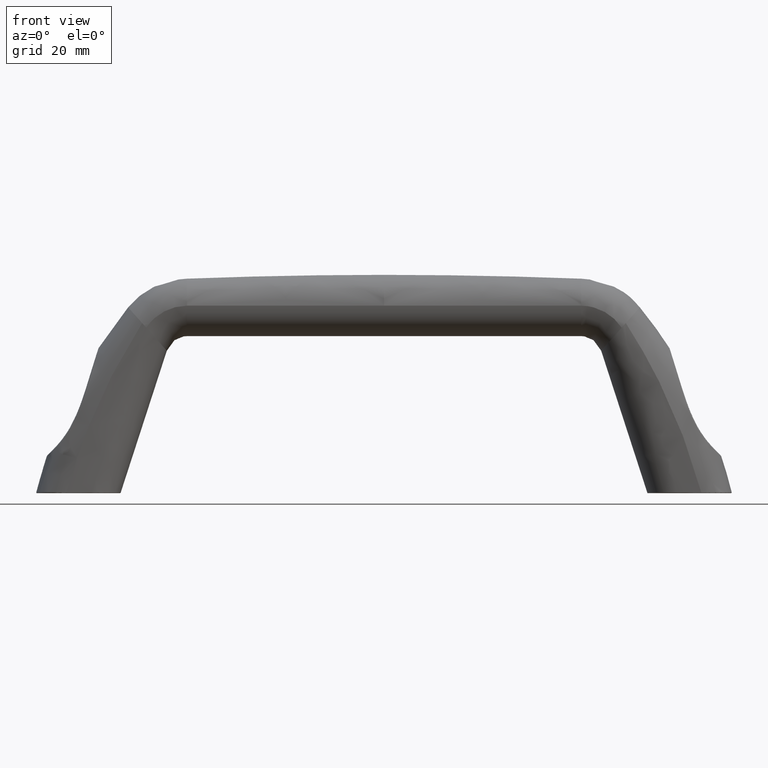
[diagram: clean part render]
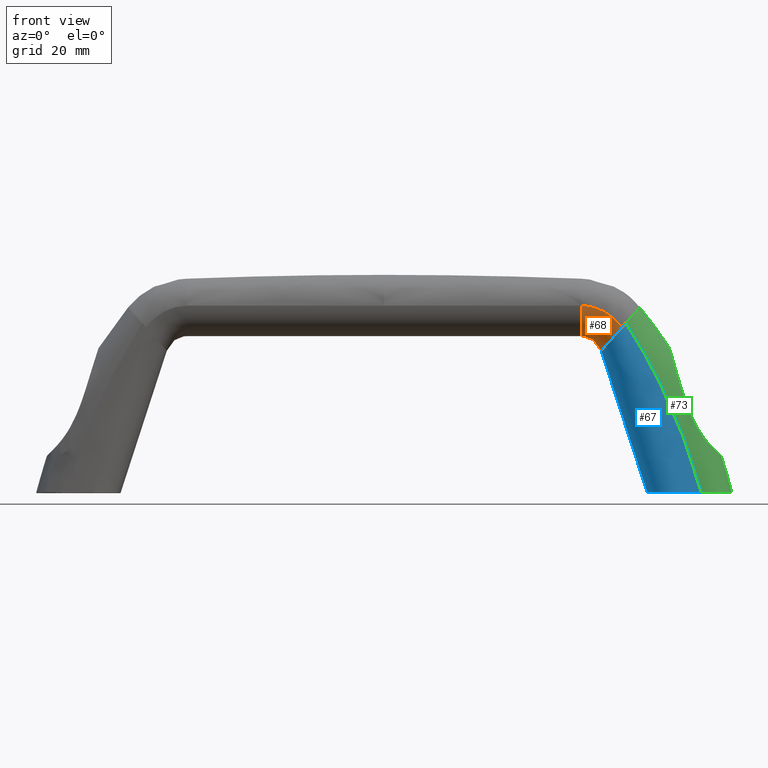
[diagram: same view with three faces highlighted in distinct colors, each labeled with its STEP entity id]
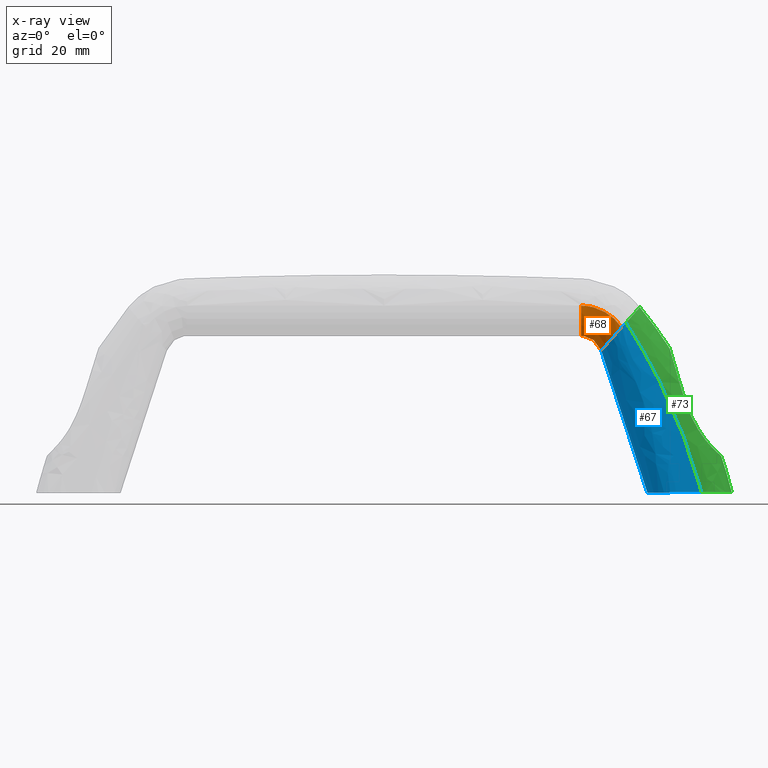
[diagram: x-ray of the same camera — body ghosted, the three highlighted faces saturated]
A machine part, front view with three faces highlighted in distinct colors.
The next image is the same camera in x-ray (body ghosted, the three faces saturated) — at least one of them is partly hidden behind the body in this view.
Their STEP definitions:

[orange] entity #68 — the highlighted face is a freeform B-spline surface patch.
#68=ADVANCED_FACE('',(#377),#376,.T.);
#376=( BOUNDED_SURFACE() B_SPLINE_SURFACE( 2,3,((#2759,#2760,#2761,#2762,#2763,#2764,#2765,#2766,#2767,#2768,#2769,#2770,#2771,#2772),(#2773,#2774,#2775,#2776,#2777,#2778,#2779,#2780,#2781,#2782,#2783,#2784,#2785,#2786),(#2787,#2788,#2789,#2790,#2791,#2792,#2793,#2794,#2795,#2796,#2797,#2798,#2799,#2800),(#2801,#2802,#2803,#2804,#2805,#2806,#2807,#2808,#2809,#2810,#2811,#2812,#2813,#2814),(#2815,#2816,#2817,#2818,#2819,#2820,#2821,#2822,#2823,#2824,#2825,#2826,#2827,#2828)), .UNSPECIFIED.,.F.,.F.,.F.) B_SPLINE_SURFACE_WITH_KNOTS((3,2,3),(4,2,2,2,2,2,4),(0.00000000000E+00,1.26555991594E+01,2.53111983189E+01),(0.00000000000E+00,7.67197238666E-01,1.53439447733E+00,3.06878895467E+00,6.13757790933E+00,9.20636686400E+00,1.22751558187E+01), .UNSPECIFIED. ) GEOMETRIC_REPRESENTATION_ITEM() RATIONAL_B_SPLINE_SURFACE(((1.00000000000E+00,1.00000000000E+00,1.00000000000E+00,1.00000000000E+00,1.00000000000E+00,1.00000000000E+00,1.00000000000E+00,1.00000000000E+00,1.00000000000E+00,1.00000000000E+00,1.00000000000E+00,1.00000000000E+00,1.00000000000E+00,1.00000000000E+00),(7.07106781187E-01,7.07106781187E-01,7.07106781187E-01,7.07106781187E-01,7.07106781187E-01,7.07106781187E-01,7.07106781187E-01,7.07106781187E-01,7.07106781187E-01,7.07106781187E-01,7.07106781187E-01,7.07106781187E-01,7.07106781187E-01,7.07106781187E-01),(1.00000000000E+00,1.00000000000E+00,1.00000000000E+00,1.00000000000E+00,1.00000000000E+00,1.00000000000E+00,1.00000000000E+00,1.00000000000E+00,1.00000000000E+00,1.00000000000E+00,1.00000000000E+00,1.00000000000E+00,1.00000000000E+00,1.00000000000E+00),(7.07106781187E-01,7.07106781187E-01,7.07106781187E-01,7.07106781187E-01,7.07106781187E-01,7.07106781187E-01,7.07106781187E-01,7.07106781187E-01,7.07106781187E-01,7.07106781187E-01,7.07106781187E-01,7.07106781187E-01,7.07106781187E-01,7.07106781187E-01),(1.00000000000E+00,1.00000000000E+00,1.00000000000E+00,1.00000000000E+00,1.00000000000E+00,1.00000000000E+00,1.00000000000E+00,1.00000000000E+00,1.00000000000E+00,1.00000000000E+00,1.00000000000E+00,1.00000000000E+00,1.00000000000E+00,1.00000000000E+00))) REPRESENTATION_ITEM('') SURFACE() );
#377=FACE_OUTER_BOUND('',#2829,.T.);
#2759=CARTESIAN_POINT('',(-2.85206787322E+01,2.05500000150E+01,7.04499999848E+01));
#2760=CARTESIAN_POINT('',(-2.82584653874E+01,2.05581993387E+01,7.04418038533E+01));
#2761=CARTESIAN_POINT('',(-2.79959610585E+01,2.05577015712E+01,7.04339961398E+01));
#2762=CARTESIAN_POINT('',(-2.74724404576E+01,2.05614835576E+01,7.03970385650E+01));
#2763=CARTESIAN_POINT('',(-2.72111338473E+01,2.05626141438E+01,7.03710224920E+01));
#2764=CARTESIAN_POINT('',(-2.64306436085E+01,2.05657469883E+01,7.02685756085E+01));
#2765=CARTESIAN_POINT('',(-2.59145727336E+01,2.05666553113E+01,7.01684305899E+01));
#2766=CARTESIAN_POINT('',(-2.43909018848E+01,2.05660856390E+01,6.97750318919E+01));
#2767=CARTESIAN_POINT('',(-2.34083223710E+01,2.05611963603E+01,6.93879393799E+01));
#2768=CARTESIAN_POINT('',(-2.15685934252E+01,2.05425092102E+01,6.83892517022E+01));
#2769=CARTESIAN_POINT('',(-2.07116871275E+01,2.05287103796E+01,6.77777137465E+01));
#2770=CARTESIAN_POINT('',(-1.91745256747E+01,2.04924521020E+01,6.63691377231E+01));
#2771=CARTESIAN_POINT('',(-1.84942912993E+01,2.04700015543E+01,6.55723223142E+01));
#2772=CARTESIAN_POINT('',(-1.79222159583E+01,2.04433877271E+01,6.47079671291E+01));
#2773=CARTESIAN_POINT('',(-2.85206787322E+01,2.05500000150E+01,6.24999999848E+01));
#2774=CARTESIAN_POINT('',(-2.83767145385E+01,2.05581993387E+01,6.25000013173E+01));
#2775=CARTESIAN_POINT('',(-2.82327116996E+01,2.05577015712E+01,6.24943431764E+01));
#2776=CARTESIAN_POINT('',(-2.79456441137E+01,2.05614835576E+01,6.24717531609E+01));
#2777=CARTESIAN_POINT('',(-2.78025370236E+01,2.05626141438E+01,6.24548117542E+01));
#2778=CARTESIAN_POINT('',(-2.73759211762E+01,2.05657469883E+01,6.23872686121E+01));
#2779=CARTESIAN_POINT('',(-2.70950600381E+01,2.05666553113E+01,6.23198031601E+01));
#2780=CARTESIAN_POINT('',(-2.62733621763E+01,2.05660856390E+01,6.20530256702E+01));
#2781=CARTESIAN_POINT('',(-2.57539420679E+01,2.05611963603E+01,6.17883090564E+01));
#2782=CARTESIAN_POINT('',(-2.48219877641E+01,2.05425092102E+01,6.11112809238E+01));
#2783=CARTESIAN_POINT('',(-2.44097315282E+01,2.05287103796E+01,6.06990664655E+01));
#2784=CARTESIAN_POINT('',(-2.37326364736E+01,2.04924521020E+01,5.97671766253E+01));
#2785=CARTESIAN_POINT('',(-2.34678287873E+01,2.04700015543E+01,5.92477939106E+01));
#2786=CARTESIAN_POINT('',(-2.32899913541E+01,2.04433877271E+01,5.86999733827E+01));
#2787=CARTESIAN_POINT('',(-2.85206787322E+01,2.85000000150E+01,6.24999999848E+01));
#2788=CARTESIAN_POINT('',(-2.83767145385E+01,2.85000000150E+01,6.25000013173E+01));
#2789=CARTESIAN_POINT('',(-2.82327116996E+01,2.85000000150E+01,6.24943431764E+01));
#2790=CARTESIAN_POINT('',(-2.79456441137E+01,2.85000000150E+01,6.24717531609E+01));
#2791=CARTESIAN_POINT('',(-2.78025370236E+01,2.85000000150E+01,6.24548117542E+01));
#2792=CARTESIAN_POINT('',(-2.73759211762E+01,2.85000000150E+01,6.23872686121E+01));
#2793=CARTESIAN_POINT('',(-2.70950600381E+01,2.85000000150E+01,6.23198031601E+01));
#2794=CARTESIAN_POINT('',(-2.62733621763E+01,2.85000000150E+01,6.20530256702E+01));
#2795=CARTESIAN_POINT('',(-2.57539420679E+01,2.85000000150E+01,6.17883090564E+01));
#2796=CARTESIAN_POINT('',(-2.48219877641E+01,2.85000000150E+01,6.11112809238E+01));
#2797=CARTESIAN_POINT('',(-2.44097315282E+01,2.85000000150E+01,6.06990664655E+01));
#2798=CARTESIAN_POINT('',(-2.37326364736E+01,2.85000000150E+01,5.97671766253E+01));
#2799=CARTESIAN_POINT('',(-2.34678287873E+01,2.85000000150E+01,5.92477939106E+01));
#2800=CARTESIAN_POINT('',(-2.32899913541E+01,2.85000000150E+01,5.86999733827E+01));
#2801=CARTESIAN_POINT('',(-2.85206787322E+01,3.64500000150E+01,6.24999999848E+01));
#2802=CARTESIAN_POINT('',(-2.83767145385E+01,3.64418006913E+01,6.25000013173E+01));
#2803=CARTESIAN_POINT('',(-2.82327116996E+01,3.64422984588E+01,6.24943431764E+01));
#2804=CARTESIAN_POINT('',(-2.79456441137E+01,3.64385164724E+01,6.24717531609E+01));
#2805=CARTESIAN_POINT('',(-2.78025370236E+01,3.64373858862E+01,6.24548117542E+01));
#2806=CARTESIAN_POINT('',(-2.73759211762E+01,3.64342530417E+01,6.23872686121E+01));
#2807=CARTESIAN_POINT('',(-2.70950600381E+01,3.64333447187E+01,6.23198031601E+01));
#2808=CARTESIAN_POINT('',(-2.62733621763E+01,3.64339143910E+01,6.20530256702E+01));
#2809=CARTESIAN_POINT('',(-2.57539420679E+01,3.64388036697E+01,6.17883090564E+01));
#2810=CARTESIAN_POINT('',(-2.48219877641E+01,3.64574908197E+01,6.11112809238E+01));
#2811=CARTESIAN_POINT('',(-2.44097315282E+01,3.64712896504E+01,6.06990664655E+01));
#2812=CARTESIAN_POINT('',(-2.37326364736E+01,3.65075479280E+01,5.97671766253E+01));
#2813=CARTESIAN_POINT('',(-2.34678287873E+01,3.65299984757E+01,5.92477939106E+01));
#2814=CARTESIAN_POINT('',(-2.32899913541E+01,3.65566123028E+01,5.86999733827E+01));
#2815=CARTESIAN_POINT('',(-2.85206787322E+01,3.64500000150E+01,7.04499999848E+01));
#2816=CARTESIAN_POINT('',(-2.82584653874E+01,3.64418006913E+01,7.04418038533E+01));
#2817=CARTESIAN_POINT('',(-2.79959610585E+01,3.64422984588E+01,7.04339961398E+01));
#2818=CARTESIAN_POINT('',(-2.74724404576E+01,3.64385164724E+01,7.03970385650E+01));
#2819=CARTESIAN_POINT('',(-2.72111338473E+01,3.64373858862E+01,7.03710224920E+01));
#2820=CARTESIAN_POINT('',(-2.64306436085E+01,3.64342530417E+01,7.02685756085E+01));
#2821=CARTESIAN_POINT('',(-2.59145727336E+01,3.64333447187E+01,7.01684305899E+01));
#2822=CARTESIAN_POINT('',(-2.43909018848E+01,3.64339143910E+01,6.97750318919E+01));
#2823=CARTESIAN_POINT('',(-2.34083223710E+01,3.64388036697E+01,6.93879393799E+01));
#2824=CARTESIAN_POINT('',(-2.15685934252E+01,3.64574908197E+01,6.83892517022E+01));
#2825=CARTESIAN_POINT('',(-2.07116871275E+01,3.64712896504E+01,6.77777137465E+01));
#2826=CARTESIAN_POINT('',(-1.91745256747E+01,3.65075479280E+01,6.63691377231E+01));
#2827=CARTESIAN_POINT('',(-1.84942912993E+01,3.65299984757E+01,6.55723223142E+01));
#2828=CARTESIAN_POINT('',(-1.79222159583E+01,3.65566123028E+01,6.47079671291E+01));
#2829=EDGE_LOOP('',(#4204,#4205,#4206,#4207,#4208,#4209));
#4204=ORIENTED_EDGE('',*,*,#4359,.T.);
#4205=ORIENTED_EDGE('',*,*,#4363,.T.);
#4206=ORIENTED_EDGE('',*,*,#4395,.T.);
#4207=ORIENTED_EDGE('',*,*,#4396,.T.);
#4208=ORIENTED_EDGE('',*,*,#4394,.F.);
#4209=ORIENTED_EDGE('',*,*,#4397,.T.);
#4359=EDGE_CURVE('',#4720,#4713,#4721,.T.);
#4363=EDGE_CURVE('',#4713,#4740,#4747,.T.);
#4394=EDGE_CURVE('',#4944,#4923,#4951,.T.);
#4395=EDGE_CURVE('',#4740,#4957,#4958,.T.);
#4396=EDGE_CURVE('',#4957,#4923,#4964,.T.);
#4397=EDGE_CURVE('',#4944,#4720,#4970,.T.);
#4713=VERTEX_POINT('',#5895);
#4720=VERTEX_POINT('',#5899);
#4721=CIRCLE('',#5903,7.95000000014E+00);
#4740=VERTEX_POINT('',#5911);
#4747=CIRCLE('',#5918,7.95000000009E+00);
#4923=VERTEX_POINT('',#6342);
#4944=VERTEX_POINT('',#6388);
#4951=CIRCLE('',#6396,8.05661228784E+00);
#4957=VERTEX_POINT('',#6397);
#4958=(BOUNDED_CURVE() B_SPLINE_CURVE(3,(#6398,#6399,#6400,#6401,#6402,#6403,#6404,#6405,#6406,#6407,#6408,#6409,#6410,#6411,#6412,#6413,#6414,#6415,#6416),.UNSPECIFIED.,.F.,.F.) B_SPLINE_CURVE_WITH_KNOTS((4,3,3,3,3,3,4),(0.00000000000E+00,7.68950382026E-01,1.53781060209E+00,3.07573168831E+00,6.15333678594E+00,9.22144672174E+00,1.22751558187E+01),.UNSPECIFIED.) CURVE() GEOMETRIC_REPRESENTATION_ITEM() RATIONAL_B_SPLINE_CURVE((1.00000000000E+00,1.00000000000E+00,1.00000000000E+00,1.00000000000E+00,1.00000000000E+00,1.00000000000E+00,1.00000000000E+00,1.00000000000E+00,1.00000000000E+00,1.00000000000E+00,1.00000000000E+00,1.00000000000E+00,1.00000000000E+00,1.00000000000E+00,1.00000000000E+00,1.00000000000E+00,1.00000000000E+00,1.00000000000E+00,1.00000000000E+00)) REPRESENTATION_ITEM('') );
#4964=CIRCLE('',#6420,8.05661228784E+00);
#4970=(BOUNDED_CURVE() B_SPLINE_CURVE(3,(#6421,#6422,#6423,#6424,#6425,#6426,#6427,#6428,#6429,#6430,#6431,#6432,#6433,#6434,#6435,#6436,#6437,#6438,#6439),.UNSPECIFIED.,.F.,.F.) B_SPLINE_CURVE_WITH_KNOTS((4,3,3,3,3,3,4),(-1.22751558187E+01,-9.22144672174E+00,-6.15333678594E+00,-3.07573168831E+00,-1.53781060209E+00,-7.68950382026E-01,0.00000000000E+00),.UNSPECIFIED.) CURVE() GEOMETRIC_REPRESENTATION_ITEM() RATIONAL_B_SPLINE_CURVE((1.00000000000E+00,1.00000000000E+00,1.00000000000E+00,1.00000000000E+00,1.00000000000E+00,1.00000000000E+00,1.00000000000E+00,1.00000000000E+00,1.00000000000E+00,1.00000000000E+00,1.00000000000E+00,1.00000000000E+00,1.00000000000E+00,1.00000000000E+00,1.00000000000E+00,1.00000000000E+00,1.00000000000E+00,1.00000000000E+00,1.00000000000E+00)) REPRESENTATION_ITEM('') );
#5895=CARTESIAN_POINT('',(-2.85206787322E+01,2.85000000150E+01,6.24999999847E+01));
#5899=CARTESIAN_POINT('',(-2.85206787322E+01,2.05500000150E+01,7.04499999848E+01));
#5900=CARTESIAN_POINT('',(-2.85206787322E+01,2.85000000151E+01,7.04499999848E+01));
#5901=DIRECTION('',(1.00000000000E+00,-3.12817556618E-15,-3.23660737606E-15));
#5902=DIRECTION('',(3.12817556619E-15,1.00000000000E+00,4.29006934791E-13));
#5903=AXIS2_PLACEMENT_3D('',#5900,#5901,#5902);
#5911=CARTESIAN_POINT('',(-2.85206787322E+01,3.64500000150E+01,7.04499999848E+01));
#5915=CARTESIAN_POINT('',(-2.85206787322E+01,2.85000000149E+01,7.04499999848E+01));
#5916=DIRECTION('',(1.00000000000E+00,-7.55208387756E-15,7.59699780355E-15));
#5917=DIRECTION('',(-7.59699780364E-15,-1.15974874706E-11,1.00000000000E+00));
#5918=AXIS2_PLACEMENT_3D('',#5915,#5916,#5917);
#6342=CARTESIAN_POINT('',(-2.32899913541E+01,2.85000000150E+01,5.86999733827E+01));
#6388=CARTESIAN_POINT('',(-1.79222159583E+01,2.04433877271E+01,6.47079671291E+01));
#6393=CARTESIAN_POINT('',(-1.79222159584E+01,2.85000000150E+01,6.47079671292E+01));
#6394=DIRECTION('',(7.45722089115E-01,1.39560121619E-11,-6.66257131899E-01));
#6395=DIRECTION('',(-1.04112705142E-11,1.00000000000E+00,9.29385588127E-12));
#6396=AXIS2_PLACEMENT_3D('',#6393,#6394,#6395);
#6397=CARTESIAN_POINT('',(-1.79222159583E+01,3.65566123028E+01,6.47079671291E+01));
#6398=CARTESIAN_POINT('',(-2.85206787322E+01,3.64500000150E+01,7.04499999848E+01));
#6399=CARTESIAN_POINT('',(-2.82584653874E+01,3.64418006913E+01,7.04418038533E+01));
#6400=CARTESIAN_POINT('',(-2.79959610585E+01,3.64422984588E+01,7.04339961398E+01));
#6401=CARTESIAN_POINT('',(-2.77342007580E+01,3.64404074656E+01,7.04155173524E+01));
#6402=CARTESIAN_POINT('',(-2.74724404576E+01,3.64385164724E+01,7.03970385650E+01));
#6403=CARTESIAN_POINT('',(-2.72111338473E+01,3.64373858862E+01,7.03710224920E+01));
#6404=CARTESIAN_POINT('',(-2.69509704344E+01,3.64363416047E+01,7.03368735308E+01));
#6405=CARTESIAN_POINT('',(-2.64306436085E+01,3.64342530417E+01,7.02685756085E+01));
#6406=CARTESIAN_POINT('',(-2.59145727336E+01,3.64333447187E+01,7.01684305899E+01));
#6407=CARTESIAN_POINT('',(-2.54066824506E+01,3.64335346095E+01,7.00372976906E+01));
#6408=CARTESIAN_POINT('',(-2.43909018848E+01,3.64339143910E+01,6.97750318919E+01));
#6409=CARTESIAN_POINT('',(-2.34083223710E+01,3.64388036697E+01,6.93879393799E+01));
#6410=CARTESIAN_POINT('',(-2.24884578981E+01,3.64481472447E+01,6.88885955411E+01));
#6411=CARTESIAN_POINT('',(-2.15685934252E+01,3.64574908197E+01,6.83892517022E+01));
#6412=CARTESIAN_POINT('',(-2.07116871275E+01,3.64712896504E+01,6.77777137465E+01));
#6413=CARTESIAN_POINT('',(-1.99431064011E+01,3.64894187892E+01,6.70734257348E+01));
#6414=CARTESIAN_POINT('',(-1.91745256747E+01,3.65075479280E+01,6.63691377231E+01));
#6415=CARTESIAN_POINT('',(-1.84942912993E+01,3.65299984757E+01,6.55723223142E+01));
#6416=CARTESIAN_POINT('',(-1.79222159583E+01,3.65566123028E+01,6.47079671291E+01));
#6417=CARTESIAN_POINT('',(-1.79222159584E+01,2.85000000150E+01,6.47079671292E+01));
#6418=DIRECTION('',(-7.45722089115E-01,1.39614191261E-11,6.66257131899E-01));
#6419=DIRECTION('',(-1.04090656708E-11,-1.00000000000E+00,9.30443912956E-12));
#6420=AXIS2_PLACEMENT_3D('',#6417,#6418,#6419);
#6421=CARTESIAN_POINT('',(-1.79222159583E+01,2.04433877271E+01,6.47079671291E+01));
#6422=CARTESIAN_POINT('',(-1.84942912993E+01,2.04700015543E+01,6.55723223142E+01));
#6423=CARTESIAN_POINT('',(-1.91745256747E+01,2.04924521020E+01,6.63691377231E+01));
#6424=CARTESIAN_POINT('',(-1.99431064011E+01,2.05105812408E+01,6.70734257348E+01));
#6425=CARTESIAN_POINT('',(-2.07116871275E+01,2.05287103796E+01,6.77777137465E+01));
#6426=CARTESIAN_POINT('',(-2.15685934252E+01,2.05425092102E+01,6.83892517022E+01));
#6427=CARTESIAN_POINT('',(-2.24884578981E+01,2.05518527853E+01,6.88885955411E+01));
#6428=CARTESIAN_POINT('',(-2.34083223710E+01,2.05611963603E+01,6.93879393799E+01));
#6429=CARTESIAN_POINT('',(-2.43909018848E+01,2.05660856390E+01,6.97750318919E+01));
#6430=CARTESIAN_POINT('',(-2.54066824506E+01,2.05664654205E+01,7.00372976906E+01));
#6431=CARTESIAN_POINT('',(-2.59145727336E+01,2.05666553113E+01,7.01684305899E+01));
#6432=CARTESIAN_POINT('',(-2.64306436085E+01,2.05657469883E+01,7.02685756085E+01));
#6433=CARTESIAN_POINT('',(-2.69509704344E+01,2.05636584253E+01,7.03368735308E+01));
#6434=CARTESIAN_POINT('',(-2.72111338473E+01,2.05626141438E+01,7.03710224920E+01));
#6435=CARTESIAN_POINT('',(-2.74724404576E+01,2.05614835576E+01,7.03970385650E+01));
#6436=CARTESIAN_POINT('',(-2.77342007580E+01,2.05595925644E+01,7.04155173524E+01));
#6437=CARTESIAN_POINT('',(-2.79959610585E+01,2.05577015712E+01,7.04339961398E+01));
#6438=CARTESIAN_POINT('',(-2.82584653874E+01,2.05581993387E+01,7.04418038533E+01));
#6439=CARTESIAN_POINT('',(-2.85206787322E+01,2.05500000150E+01,7.04499999848E+01));

[blue] entity #67 — the highlighted face is a freeform B-spline surface patch.
#67=ADVANCED_FACE('',(#367),#366,.T.);
#366=( BOUNDED_SURFACE() B_SPLINE_SURFACE( 2,3,((#2708,#2709,#2710,#2711,#2712,#2713,#2714,#2715,#2716,#2717),(#2718,#2719,#2720,#2721,#2722,#2723,#2724,#2725,#2726,#2727),(#2728,#2729,#2730,#2731,#2732,#2733,#2734,#2735,#2736,#2737),(#2738,#2739,#2740,#2741,#2742,#2743,#2744,#2745,#2746,#2747),(#2748,#2749,#2750,#2751,#2752,#2753,#2754,#2755,#2756,#2757)), .UNSPECIFIED.,.F.,.F.,.F.) B_SPLINE_SURFACE_WITH_KNOTS((3,2,3),(4,2,2,2,4),(3.47271992166E+01,3.63699601762E+01,4.90255593356E+01),(-1.44328993201E-14,1.17126444058E+01,2.34252888115E+01,3.51379332173E+01,4.68505776231E+01), .UNSPECIFIED. ) GEOMETRIC_REPRESENTATION_ITEM() RATIONAL_B_SPLINE_SURFACE(((1.00000000000E+00,1.00000000000E+00,1.00000000000E+00,1.00000000000E+00,1.00000000000E+00,1.00000000000E+00,1.00000000000E+00,1.00000000000E+00,1.00000000000E+00,1.00000000000E+00),(9.86890175793E-01,9.86890175793E-01,9.87709539806E-01,9.90167631845E-01,9.91806359870E-01,9.95083815922E-01,9.96722543948E-01,9.99180635987E-01,1.00000000000E+00,1.00000000000E+00),(1.00000000000E+00,1.00000000000E+00,1.00000000000E+00,1.00000000000E+00,1.00000000000E+00,1.00000000000E+00,1.00000000000E+00,1.00000000000E+00,1.00000000000E+00,1.00000000000E+00),(7.07106781187E-01,7.07106781187E-01,7.07106781187E-01,7.07106781187E-01,7.07106781187E-01,7.07106781187E-01,7.07106781187E-01,7.07106781187E-01,7.07106781187E-01,7.07106781187E-01),(1.00000000000E+00,1.00000000000E+00,1.00000000000E+00,1.00000000000E+00,1.00000000000E+00,1.00000000000E+00,1.00000000000E+00,1.00000000000E+00,1.00000000000E+00,1.00000000000E+00))) REPRESENTATION_ITEM('') SURFACE() );
#367=FACE_OUTER_BOUND('',#2758,.T.);
#2708=CARTESIAN_POINT('',(-1.68467878146E+01,2.07073586351E+01,6.59116623447E+01));
#2709=CARTESIAN_POINT('',(-1.46654925782E+01,2.07073586351E+01,6.25298085047E+01));
#2710=CARTESIAN_POINT('',(-1.26047943234E+01,2.06975237214E+01,5.90509917418E+01));
#2711=CARTESIAN_POINT('',(-8.74389165421E+00,2.06680189801E+01,5.19238773608E+01));
#2712=CARTESIAN_POINT('',(-6.94358544698E+00,2.06483491526E+01,4.82751480269E+01));
#2713=CARTESIAN_POINT('',(-3.62443640943E+00,2.06090094975E+01,4.08347918637E+01));
#2714=CARTESIAN_POINT('',(-2.10559984680E+00,2.05893396700E+01,3.70428377879E+01));
#2715=CARTESIAN_POINT('',(6.30410565546E-01,2.05598349288E+01,2.93466784223E+01));
#2716=CARTESIAN_POINT('',(1.84748475562E+00,2.05500000150E+01,2.54425119447E+01));
#2717=CARTESIAN_POINT('',(2.90542052310E+00,2.05500000150E+01,2.14999999850E+01));
#2718=CARTESIAN_POINT('',(-1.73701210390E+01,2.04433877271E+01,6.53259107982E+01));
#2719=CARTESIAN_POINT('',(-1.52825497598E+01,2.04433877271E+01,6.19673061865E+01));
#2720=CARTESIAN_POINT('',(-1.33740284117E+01,2.04501339088E+01,5.84603993675E+01));
#2721=CARTESIAN_POINT('',(-9.95292660388E+00,2.04703054642E+01,5.12700237748E+01));
#2722=CARTESIAN_POINT('',(-8.44038581323E+00,2.04836976198E+01,4.75945984716E+01));
#2723=CARTESIAN_POINT('',(-5.72755414775E+00,2.05103496040E+01,4.01877819169E+01));
#2724=CARTESIAN_POINT('',(-4.52273047366E+00,2.05236098676E+01,3.64580292106E+01));
#2725=CARTESIAN_POINT('',(-2.27152182565E+00,2.05434187088E+01,2.89959656932E+01));
#2726=CARTESIAN_POINT('',(-1.21980777474E+00,2.05500000150E+01,2.52579581122E+01));
#2727=CARTESIAN_POINT('',(-1.72289738418E-01,2.05500000150E+01,2.14999999850E+01));
#2728=CARTESIAN_POINT('',(-1.79222159583E+01,2.04433877271E+01,6.47079671291E+01));
#2729=CARTESIAN_POINT('',(-1.59331625505E+01,2.04433877271E+01,6.13731842310E+01));
#2730=CARTESIAN_POINT('',(-1.41736074125E+01,2.04500509951E+01,5.78350418513E+01));
#2731=CARTESIAN_POINT('',(-1.11860106982E+01,2.04700407991E+01,5.05921628121E+01));
#2732=CARTESIAN_POINT('',(-9.95441560421E+00,2.04833673351E+01,4.68920730364E+01));
#2733=CARTESIAN_POINT('',(-7.83648116805E+00,2.05100204071E+01,3.95254143793E+01));
#2734=CARTESIAN_POINT('',(-6.94259666984E+00,2.05233469430E+01,3.58623401949E+01));
#2735=CARTESIAN_POINT('',(-5.17132487878E+00,2.05433367470E+01,2.86357902746E+01));
#2736=CARTESIAN_POINT('',(-4.28695479229E+00,2.05500000150E+01,2.50725591624E+01));
#2737=CARTESIAN_POINT('',(-3.24999999993E+00,2.05500000150E+01,2.14999999850E+01));
#2738=CARTESIAN_POINT('',(-2.32899913541E+01,2.04433877271E+01,5.86999733827E+01));
#2739=CARTESIAN_POINT('',(-2.22824920745E+01,2.04433877271E+01,5.55999755995E+01));
#2740=CARTESIAN_POINT('',(-2.12749927950E+01,2.04500509951E+01,5.24999778164E+01));
#2741=CARTESIAN_POINT('',(-1.92599942359E+01,2.04700407991E+01,4.62999822501E+01));
#2742=CARTESIAN_POINT('',(-1.82524949564E+01,2.04833673351E+01,4.31999844670E+01));
#2743=CARTESIAN_POINT('',(-1.62374963974E+01,2.05100204071E+01,3.69999889007E+01));
#2744=CARTESIAN_POINT('',(-1.52299971179E+01,2.05233469430E+01,3.38999911175E+01));
#2745=CARTESIAN_POINT('',(-1.32149985590E+01,2.05433367470E+01,2.76999955512E+01));
#2746=CARTESIAN_POINT('',(-1.22074992795E+01,2.05500000150E+01,2.45999977681E+01));
#2747=CARTESIAN_POINT('',(-1.11999999999E+01,2.05500000150E+01,2.14999999850E+01));
#2748=CARTESIAN_POINT('',(-2.32899913541E+01,2.85000000150E+01,5.86999733827E+01));
#2749=CARTESIAN_POINT('',(-2.22824920745E+01,2.85000000150E+01,5.55999755995E+01));
#2750=CARTESIAN_POINT('',(-2.12749927950E+01,2.85000000150E+01,5.24999778164E+01));
#2751=CARTESIAN_POINT('',(-1.92599942359E+01,2.85000000150E+01,4.62999822501E+01));
#2752=CARTESIAN_POINT('',(-1.82524949564E+01,2.85000000150E+01,4.31999844670E+01));
#2753=CARTESIAN_POINT('',(-1.62374963974E+01,2.85000000150E+01,3.69999889007E+01));
#2754=CARTESIAN_POINT('',(-1.52299971179E+01,2.85000000150E+01,3.38999911175E+01));
#2755=CARTESIAN_POINT('',(-1.32149985590E+01,2.85000000150E+01,2.76999955512E+01));
#2756=CARTESIAN_POINT('',(-1.22074992795E+01,2.85000000150E+01,2.45999977681E+01));
#2757=CARTESIAN_POINT('',(-1.11999999999E+01,2.85000000150E+01,2.14999999850E+01));
#2758=EDGE_LOOP('',(#4199,#4200,#4201,#4202,#4203));
#4199=ORIENTED_EDGE('',*,*,#4390,.T.);
#4200=ORIENTED_EDGE('',*,*,#4391,.T.);
#4201=ORIENTED_EDGE('',*,*,#4392,.T.);
#4202=ORIENTED_EDGE('',*,*,#4393,.T.);
#4203=ORIENTED_EDGE('',*,*,#4394,.T.);
#4390=EDGE_CURVE('',#4923,#4924,#4925,.T.);
#4391=EDGE_CURVE('',#4924,#4436,#4931,.T.);
#4392=EDGE_CURVE('',#4436,#4937,#4938,.T.);
#4393=EDGE_CURVE('',#4937,#4944,#4945,.T.);
#4394=EDGE_CURVE('',#4944,#4923,#4951,.T.);
#4436=VERTEX_POINT('',#5223);
#4923=VERTEX_POINT('',#6342);
#4924=VERTEX_POINT('',#6343);
#4925=LINE('',#6344,#6345);
#4931=(BOUNDED_CURVE() B_SPLINE_CURVE(3,(#6347,#6348,#6349,#6350,#6351,#6352,#6353,#6354,#6355,#6356,#6357,#6358,#6359,#6360,#6361,#6362,#6363,#6364,#6365,#6366,#6367,#6368,#6369,#6370,#6371,#6372,#6373),.UNSPECIFIED.,.F.,.F.) B_SPLINE_CURVE_WITH_KNOTS((4,2,2,2,2,2,2,2,2,2,2,2,1,4),(-1.86545012662E+01,-1.74885949370E+01,-1.63226886079E+01,-1.51567822787E+01,-1.39908759496E+01,-1.28249696205E+01,-1.16590632913E+01,-9.32725063306E+00,-8.16134430391E+00,-6.99543797473E+00,-6.41248481025E+00,-5.82953164566E+00,-4.66362531649E+00,0.00000000000E+00),.UNSPECIFIED.) CURVE() GEOMETRIC_REPRESENTATION_ITEM() RATIONAL_B_SPLINE_CURVE((1.00000000000E+00,1.00000000000E+00,1.00000000000E+00,1.00000000000E+00,1.00000000000E+00,1.00000000000E+00,1.00000000000E+00,1.00000000000E+00,1.00000000000E+00,1.00000000000E+00,1.00000000000E+00,1.00000000000E+00,1.00000000000E+00,1.00000000000E+00,1.00000000000E+00,1.00000000000E+00,1.00000000000E+00,1.00000000000E+00,1.00000000000E+00,1.00000000000E+00,1.00000000000E+00,1.00000000000E+00,1.00000000000E+00,1.00000000000E+00,1.00000000000E+00,1.00000000000E+00,1.00000000000E+00)) REPRESENTATION_ITEM('') );
#4937=VERTEX_POINT('',#6374);
#4938=(BOUNDED_CURVE() B_SPLINE_CURVE(3,(#6375,#6376,#6377,#6378,#6379,#6380,#6381,#6382,#6383,#6384,#6385,#6386,#6387),.UNSPECIFIED.,.F.,.F.) B_SPLINE_CURVE_WITH_KNOTS((4,3,3,3,4),(0.00000000000E+00,1.20482180650E+01,2.42907375283E+01,3.64859717455E+01,4.86065040064E+01),.UNSPECIFIED.) CURVE() GEOMETRIC_REPRESENTATION_ITEM() RATIONAL_B_SPLINE_CURVE((1.00000000000E+00,1.00000000000E+00,1.00000000000E+00,1.00000000000E+00,1.00000000000E+00,1.00000000000E+00,1.00000000000E+00,1.00000000000E+00,1.00000000000E+00,1.00000000000E+00,1.00000000000E+00,1.00000000000E+00,1.00000000000E+00)) REPRESENTATION_ITEM('') );
#4944=VERTEX_POINT('',#6388);
#4945=CIRCLE('',#6392,5.06705175301E+00);
#4951=CIRCLE('',#6396,8.05661228784E+00);
#5223=CARTESIAN_POINT('',(2.85160230910E+00,2.05500084320E+01,2.17000175471E+01));
#6342=CARTESIAN_POINT('',(-2.32899913541E+01,2.85000000150E+01,5.86999733827E+01));
#6343=CARTESIAN_POINT('',(-1.12449094052E+01,2.85000000150E+01,2.16381827705E+01));
#6344=CARTESIAN_POINT('',(-2.32899913541E+01,2.85000000150E+01,5.86999733827E+01));
#6345=VECTOR('',#6346,3.89699925909E+01);
#6346=DIRECTION('',(3.09086072336E-01,0.00000000000E+00,-9.51034068731E-01));
#6347=CARTESIAN_POINT('',(-1.12449094052E+01,2.85000000150E+01,2.16381827705E+01));
#6348=CARTESIAN_POINT('',(-1.12449092685E+01,2.81105008585E+01,2.16381823560E+01));
#6349=CARTESIAN_POINT('',(-1.12162293728E+01,2.77201560111E+01,2.16384107844E+01));
#6350=CARTESIAN_POINT('',(-1.11020727254E+01,2.69485511597E+01,2.16393191909E+01));
#6351=CARTESIAN_POINT('',(-1.10161947421E+01,2.65659869456E+01,2.16400028322E+01));
#6352=CARTESIAN_POINT('',(-1.07924582954E+01,2.58257760932E+01,2.16417862189E+01));
#6353=CARTESIAN_POINT('',(-1.06543135925E+01,2.54655747785E+01,2.16428882931E+01));
#6354=CARTESIAN_POINT('',(-1.03253058795E+01,2.47650426995E+01,2.16455160640E+01));
#6355=CARTESIAN_POINT('',(-1.01325033962E+01,2.44221491544E+01,2.16470573565E+01));
#6356=CARTESIAN_POINT('',(-9.70324894187E+00,2.37752799654E+01,2.16504902542E+01));
#6357=CARTESIAN_POINT('',(-9.46681092014E+00,2.34701161887E+01,2.16523817819E+01));
#6358=CARTESIAN_POINT('',(-8.95100934364E+00,2.28957471504E+01,2.16565038624E+01));
#6359=CARTESIAN_POINT('',(-8.67052361949E+00,2.26256123308E+01,2.16587434297E+01));
#6360=CARTESIAN_POINT('',(-7.76877031316E+00,2.18777528040E+01,2.16659204226E+01));
#6361=CARTESIAN_POINT('',(-7.10927322032E+00,2.14773776104E+01,2.16711430647E+01));
#6362=CARTESIAN_POINT('',(-6.03320644574E+00,2.10229800480E+01,2.16795141684E+01));
#6363=CARTESIAN_POINT('',(-5.65957222020E+00,2.08967970802E+01,2.16823963946E+01));
#6364=CARTESIAN_POINT('',(-4.90476792285E+00,2.07027080273E+01,2.16881503378E+01));
#6365=CARTESIAN_POINT('',(-4.52403252649E+00,2.06343128913E+01,2.16910192158E+01));
#6366=CARTESIAN_POINT('',(-3.94806583752E+00,2.05735222557E+01,2.16952973572E+01));
#6367=CARTESIAN_POINT('',(-3.75526300302E+00,2.05602544241E+01,2.16967192432E+01));
#6368=CARTESIAN_POINT('',(-3.36801264269E+00,2.05478546216E+01,2.16995529333E+01));
#6369=CARTESIAN_POINT('',(-3.17341125952E+00,2.05499931037E+01,2.16999865533E+01));
#6370=CARTESIAN_POINT('',(-2.59034543670E+00,2.05499934232E+01,2.16999872356E+01));
#6371=CARTESIAN_POINT('',(-6.46792703521E-01,2.05499954634E+01,2.16999914508E+01));
#6372=CARTESIAN_POINT('',(1.29676023571E+00,2.05500017376E+01,2.17000040955E+01));
#6373=CARTESIAN_POINT('',(2.85160230910E+00,2.05500084320E+01,2.17000175471E+01));
#6374=CARTESIAN_POINT('',(-1.68467878146E+01,2.07073586351E+01,6.59116623447E+01));
#6375=CARTESIAN_POINT('',(2.85160230910E+00,2.05500084320E+01,2.17000175471E+01));
#6376=CARTESIAN_POINT('',(1.80627047027E+00,2.05503341166E+01,2.55745657893E+01));
#6377=CARTESIAN_POINT('',(6.07272169909E-01,2.05600844499E+01,2.94117647171E+01));
#6378=CARTESIAN_POINT('',(-7.37594640629E-01,2.05745872994E+01,3.31947581051E+01));
#6379=CARTESIAN_POINT('',(-2.10559984680E+00,2.05893396700E+01,3.70428377879E+01));
#6380=CARTESIAN_POINT('',(-3.62443640943E+00,2.06090094975E+01,4.08347918637E+01));
#6381=CARTESIAN_POINT('',(-5.28401092820E+00,2.06286793251E+01,4.45549699453E+01));
#6382=CARTESIAN_POINT('',(-6.94358544698E+00,2.06483491526E+01,4.82751480269E+01));
#6383=CARTESIAN_POINT('',(-8.74389165421E+00,2.06680189801E+01,5.19238773608E+01));
#6384=CARTESIAN_POINT('',(-1.06743429888E+01,2.06827713507E+01,5.54874345513E+01));
#6385=CARTESIAN_POINT('',(-1.26047943234E+01,2.06975237214E+01,5.90509917418E+01));
#6386=CARTESIAN_POINT('',(-1.46654925782E+01,2.07073586351E+01,6.25298085047E+01));
#6387=CARTESIAN_POINT('',(-1.68467878146E+01,2.07073586351E+01,6.59116623447E+01));
#6388=CARTESIAN_POINT('',(-1.79222159583E+01,2.04433877271E+01,6.47079671291E+01));
#6389=CARTESIAN_POINT('',(-1.79222159565E+01,2.55104394802E+01,6.47079671277E+01));
#6390=DIRECTION('',(7.45722089168E-01,-4.39522751527E-10,-6.66257131839E-01));
#6391=DIRECTION('',(-2.12239423312E-01,9.47904438151E-01,-2.37553369426E-01));
#6392=AXIS2_PLACEMENT_3D('',#6389,#6390,#6391);
#6393=CARTESIAN_POINT('',(-1.79222159584E+01,2.85000000150E+01,6.47079671292E+01));
#6394=DIRECTION('',(7.45722089115E-01,1.39560121619E-11,-6.66257131899E-01));
#6395=DIRECTION('',(-1.04112705142E-11,1.00000000000E+00,9.29385588127E-12));
#6396=AXIS2_PLACEMENT_3D('',#6393,#6394,#6395);

[green] entity #73 — the highlighted face is a freeform B-spline surface patch.
#73=ADVANCED_FACE('',(#427,#428),#426,.T.);
#426=( BOUNDED_SURFACE() B_SPLINE_SURFACE( 2,3,((#3628,#3629,#3630,#3631,#3632,#3633,#3634,#3635,#3636,#3637),(#3638,#3639,#3640,#3641,#3642,#3643,#3644,#3645,#3646,#3647),(#3648,#3649,#3650,#3651,#3652,#3653,#3654,#3655,#3656,#3657),(#3658,#3659,#3660,#3661,#3662,#3663,#3664,#3665,#3666,#3667),(#3668,#3669,#3670,#3671,#3672,#3673,#3674,#3675,#3676,#3677),(#3678,#3679,#3680,#3681,#3682,#3683,#3684,#3685,#3686,#3687),(#3688,#3689,#3690,#3691,#3692,#3693,#3694,#3695,#3696,#3697),(#3698,#3699,#3700,#3701,#3702,#3703,#3704,#3705,#3706,#3707),(#3708,#3709,#3710,#3711,#3712,#3713,#3714,#3715,#3716,#3717)), .UNSPECIFIED.,.F.,.F.,.F.) B_SPLINE_SURFACE_WITH_KNOTS((3,2,2,2,3),(4,2,2,2,4),(1.42983601190E+01,2.35415368694E+01,2.45127796678E+01,2.54840224662E+01,3.47271992166E+01),(-1.37667655054E-14,1.17126444058E+01,2.34252888115E+01,3.51379332173E+01,4.68505776231E+01), .UNSPECIFIED. ) GEOMETRIC_REPRESENTATION_ITEM() RATIONAL_B_SPLINE_SURFACE(((1.00000000000E+00,1.00000000000E+00,1.00000000000E+00,1.00000000000E+00,1.00000000000E+00,1.00000000000E+00,1.00000000000E+00,1.00000000000E+00,1.00000000000E+00,1.00000000000E+00),(8.41872912067E-01,8.41872912067E-01,8.35190646820E-01,8.15143851079E-01,8.01779320585E-01,7.75050259596E-01,7.61685729102E-01,7.41638933361E-01,7.34956668114E-01,7.34956668114E-01),(1.00000000000E+00,1.00000000000E+00,9.96849779054E-01,9.87399116214E-01,9.81098674321E-01,9.68497790536E-01,9.62197348643E-01,9.52746685803E-01,9.49596464857E-01,9.49596464857E-01),(9.98582877660E-01,9.98582877660E-01,9.96930829873E-01,9.91974686513E-01,9.88670590940E-01,9.82062399793E-01,9.78758304220E-01,9.73802160860E-01,9.72150113073E-01,9.72150113073E-01),(1.00000000000E+00,1.00000000000E+00,1.00000000000E+00,1.00000000000E+00,1.00000000000E+00,1.00000000000E+00,1.00000000000E+00,1.00000000000E+00,1.00000000000E+00,1.00000000000E+00),(9.98582877660E-01,9.98582877660E-01,9.96930829873E-01,9.91974686513E-01,9.88670590940E-01,9.82062399793E-01,9.78758304220E-01,9.73802160860E-01,9.72150113073E-01,9.72150113073E-01),(1.00000000000E+00,1.00000000000E+00,9.96849779054E-01,9.87399116214E-01,9.81098674321E-01,9.68497790536E-01,9.62197348643E-01,9.52746685803E-01,9.49596464857E-01,9.49596464857E-01),(8.41872912067E-01,8.41872912067E-01,8.35190646820E-01,8.15143851079E-01,8.01779320585E-01,7.75050259596E-01,7.61685729102E-01,7.41638933361E-01,7.34956668114E-01,7.34956668114E-01),(1.00000000000E+00,1.00000000000E+00,1.00000000000E+00,1.00000000000E+00,1.00000000000E+00,1.00000000000E+00,1.00000000000E+00,1.00000000000E+00,1.00000000000E+00,1.00000000000E+00))) REPRESENTATION_ITEM('') SURFACE() );
#427=FACE_OUTER_BOUND('',#3718,.T.);
#428=FACE_BOUND('',#3719,.T.);
#3628=CARTESIAN_POINT('',(-1.68467878146E+01,3.62926413948E+01,6.59116623447E+01));
#3629=CARTESIAN_POINT('',(-1.46654925782E+01,3.62926413948E+01,6.25298085047E+01));
#3630=CARTESIAN_POINT('',(-1.26047943234E+01,3.63024763086E+01,5.90509917418E+01));
#3631=CARTESIAN_POINT('',(-8.74389165421E+00,3.63319810499E+01,5.19238773608E+01));
#3632=CARTESIAN_POINT('',(-6.94358544698E+00,3.63516508774E+01,4.82751480269E+01));
#3633=CARTESIAN_POINT('',(-3.62443640943E+00,3.63909905324E+01,4.08347918637E+01));
#3634=CARTESIAN_POINT('',(-2.10559984681E+00,3.64106603600E+01,3.70428377879E+01));
#3635=CARTESIAN_POINT('',(6.30410565542E-01,3.64401651012E+01,2.93466784223E+01));
#3636=CARTESIAN_POINT('',(1.84748475562E+00,3.64500000150E+01,2.54425119447E+01));
#3637=CARTESIAN_POINT('',(2.90542052309E+00,3.64500000150E+01,2.14999999850E+01));
#3638=CARTESIAN_POINT('',(-1.35645640826E+01,3.46370775236E+01,6.95853592122E+01));
#3639=CARTESIAN_POINT('',(-1.07814221317E+01,3.46370775236E+01,6.60566606518E+01));
#3640=CARTESIAN_POINT('',(-8.16556261104E+00,3.47367867546E+01,6.23333345200E+01));
#3641=CARTESIAN_POINT('',(-3.40100905231E+00,3.50457230259E+01,5.47135926851E+01));
#3642=CARTESIAN_POINT('',(-1.22223062645E+00,3.52602630933E+01,5.07555404653E+01));
#3643=CARTESIAN_POINT('',(2.69357808360E+00,3.57115396773E+01,4.26706840719E+01));
#3644=CARTESIAN_POINT('',(4.42153837351E+00,3.59490551112E+01,3.85406265369E+01));
#3645=CARTESIAN_POINT('',(7.46294709464E+00,3.63213786040E+01,3.00958948917E+01));
#3646=CARTESIAN_POINT('',(8.74451306476E+00,3.64500000150E+01,2.58501408569E+01));
#3647=CARTESIAN_POINT('',(9.82688448421E+00,3.64500000150E+01,2.14999999850E+01));
#3648=CARTESIAN_POINT('',(-1.31965347036E+01,2.94694082604E+01,6.99972837143E+01));
#3649=CARTESIAN_POINT('',(-1.03486437098E+01,2.94694082604E+01,6.64544552910E+01));
#3650=CARTESIAN_POINT('',(-7.68434122595E+00,2.94768520973E+01,6.27399174730E+01));
#3651=CARTESIAN_POINT('',(-2.79504840744E+00,2.94994685960E+01,5.50785328199E+01));
#3652=CARTESIAN_POINT('',(-5.57642531648E-01,2.95147883270E+01,5.11068903666E+01));
#3653=CARTESIAN_POINT('',(3.46982935621E+00,2.95460257527E+01,4.29591545425E+01));
#3654=CARTESIAN_POINT('',(5.25655502200E+00,2.95619512783E+01,3.87811123770E+01));
#3655=CARTESIAN_POINT('',(8.37464569951E+00,2.95862344952E+01,3.02441148800E+01));
#3656=CARTESIAN_POINT('',(9.69373283743E+00,2.95944363114E+01,2.59106925389E+01));
#3657=CARTESIAN_POINT('',(1.07797274255E+01,2.95944363114E+01,2.14999999850E+01));
#3658=CARTESIAN_POINT('',(-1.31621132491E+01,2.89860808335E+01,7.00358106400E+01));
#3659=CARTESIAN_POINT('',(-1.03086597294E+01,2.89860808335E+01,6.64920919248E+01));
#3660=CARTESIAN_POINT('',(-7.64384208381E+00,2.89899664652E+01,6.27837845524E+01));
#3661=CARTESIAN_POINT('',(-2.74467050351E+00,2.90017010145E+01,5.51178576372E+01));
#3662=CARTESIAN_POINT('',(-5.03664896152E-01,2.90095894079E+01,5.11469907927E+01));
#3663=CARTESIAN_POINT('',(3.53095690078E+00,2.90255254353E+01,4.29930095024E+01));
#3664=CARTESIAN_POINT('',(5.32296162756E+00,2.90335741443E+01,3.88086453510E+01));
#3665=CARTESIAN_POINT('',(8.44517759135E+00,2.90457496171E+01,3.02636791759E+01));
#3666=CARTESIAN_POINT('',(9.76909199292E+00,2.90498356956E+01,2.59162271109E+01));
#3667=CARTESIAN_POINT('',(1.08554205231E+01,2.90498356956E+01,2.14999999850E+01));
#3668=CARTESIAN_POINT('',(-1.31621132491E+01,2.85000000150E+01,7.00358106400E+01));
#3669=CARTESIAN_POINT('',(-1.03094467545E+01,2.85000000150E+01,6.64927726040E+01));
#3670=CARTESIAN_POINT('',(-7.65029653264E+00,2.85000000150E+01,6.27935655751E+01));
#3671=CARTESIAN_POINT('',(-2.75109481459E+00,2.85000000150E+01,5.51279713523E+01));
#3672=CARTESIAN_POINT('',(-5.10777031291E-01,2.85000000150E+01,5.11610589584E+01));
#3673=CARTESIAN_POINT('',(3.52404066297E+00,2.85000000150E+01,4.30072925830E+01));
#3674=CARTESIAN_POINT('',(5.31876206669E+00,2.85000000150E+01,3.88200396439E+01));
#3675=CARTESIAN_POINT('',(8.44122509505E+00,2.85000000150E+01,3.02750064954E+01));
#3676=CARTESIAN_POINT('',(9.76902656550E+00,2.85000000150E+01,2.59172937984E+01));
#3677=CARTESIAN_POINT('',(1.08554205231E+01,2.85000000150E+01,2.14999999850E+01));
#3678=CARTESIAN_POINT('',(-1.31621132491E+01,2.80139191965E+01,7.00358106400E+01));
#3679=CARTESIAN_POINT('',(-1.03086597294E+01,2.80139191965E+01,6.64920919248E+01));
#3680=CARTESIAN_POINT('',(-7.64384208381E+00,2.80100335648E+01,6.27837845524E+01));
#3681=CARTESIAN_POINT('',(-2.74467050351E+00,2.79982990155E+01,5.51178576372E+01));
#3682=CARTESIAN_POINT('',(-5.03664896152E-01,2.79904106221E+01,5.11469907927E+01));
#3683=CARTESIAN_POINT('',(3.53095690078E+00,2.79744745947E+01,4.29930095024E+01));
#3684=CARTESIAN_POINT('',(5.32296162756E+00,2.79664258857E+01,3.88086453510E+01));
#3685=CARTESIAN_POINT('',(8.44517759135E+00,2.79542504129E+01,3.02636791759E+01));
#3686=CARTESIAN_POINT('',(9.76909199292E+00,2.79501643344E+01,2.59162271109E+01));
#3687=CARTESIAN_POINT('',(1.08554205231E+01,2.79501643344E+01,2.14999999850E+01));
#3688=CARTESIAN_POINT('',(-1.31965347036E+01,2.75305917696E+01,6.99972837143E+01));
#3689=CARTESIAN_POINT('',(-1.03486437098E+01,2.75305917696E+01,6.64544552910E+01));
#3690=CARTESIAN_POINT('',(-7.68434122595E+00,2.75231479327E+01,6.27399174730E+01));
#3691=CARTESIAN_POINT('',(-2.79504840744E+00,2.75005314340E+01,5.50785328199E+01));
#3692=CARTESIAN_POINT('',(-5.57642531648E-01,2.74852117030E+01,5.11068903666E+01));
#3693=CARTESIAN_POINT('',(3.46982935621E+00,2.74539742773E+01,4.29591545425E+01));
#3694=CARTESIAN_POINT('',(5.25655502200E+00,2.74380487517E+01,3.87811123770E+01));
#3695=CARTESIAN_POINT('',(8.37464569951E+00,2.74137655348E+01,3.02441148800E+01));
#3696=CARTESIAN_POINT('',(9.69373283743E+00,2.74055637186E+01,2.59106925389E+01));
#3697=CARTESIAN_POINT('',(1.07797274255E+01,2.74055637186E+01,2.14999999850E+01));
#3698=CARTESIAN_POINT('',(-1.35645640826E+01,2.23629225064E+01,6.95853592122E+01));
#3699=CARTESIAN_POINT('',(-1.07814221317E+01,2.23629225064E+01,6.60566606518E+01));
#3700=CARTESIAN_POINT('',(-8.16556261104E+00,2.22632132754E+01,6.23333345200E+01));
#3701=CARTESIAN_POINT('',(-3.40100905231E+00,2.19542770041E+01,5.47135926851E+01));
#3702=CARTESIAN_POINT('',(-1.22223062645E+00,2.17397369367E+01,5.07555404653E+01));
#3703=CARTESIAN_POINT('',(2.69357808360E+00,2.12884603527E+01,4.26706840719E+01));
#3704=CARTESIAN_POINT('',(4.42153837351E+00,2.10509449188E+01,3.85406265369E+01));
#3705=CARTESIAN_POINT('',(7.46294709464E+00,2.06786214260E+01,3.00958948917E+01));
#3706=CARTESIAN_POINT('',(8.74451306476E+00,2.05500000150E+01,2.58501408569E+01));
#3707=CARTESIAN_POINT('',(9.82688448421E+00,2.05500000150E+01,2.14999999850E+01));
#3708=CARTESIAN_POINT('',(-1.68467878146E+01,2.07073586351E+01,6.59116623447E+01));
#3709=CARTESIAN_POINT('',(-1.46654925782E+01,2.07073586351E+01,6.25298085047E+01));
#3710=CARTESIAN_POINT('',(-1.26047943234E+01,2.06975237214E+01,5.90509917418E+01));
#3711=CARTESIAN_POINT('',(-8.74389165421E+00,2.06680189801E+01,5.19238773608E+01));
#3712=CARTESIAN_POINT('',(-6.94358544698E+00,2.06483491526E+01,4.82751480269E+01));
#3713=CARTESIAN_POINT('',(-3.62443640943E+00,2.06090094975E+01,4.08347918637E+01));
#3714=CARTESIAN_POINT('',(-2.10559984680E+00,2.05893396700E+01,3.70428377879E+01));
#3715=CARTESIAN_POINT('',(6.30410565544E-01,2.05598349288E+01,2.93466784223E+01));
#3716=CARTESIAN_POINT('',(1.84748475562E+00,2.05500000150E+01,2.54425119447E+01));
#3717=CARTESIAN_POINT('',(2.90542052310E+00,2.05500000150E+01,2.14999999850E+01));
#3718=EDGE_LOOP('',(#4229,#4230,#4231,#4232));
#3719=EDGE_LOOP('',(#4233,#4234));
#4229=ORIENTED_EDGE('',*,*,#4392,.F.);
#4230=ORIENTED_EDGE('',*,*,#4320,.F.);
#4231=ORIENTED_EDGE('',*,*,#4406,.T.);
#4232=ORIENTED_EDGE('',*,*,#4400,.F.);
#4233=ORIENTED_EDGE('',*,*,#4386,.F.);
#4234=ORIENTED_EDGE('',*,*,#4383,.F.);
#4320=EDGE_CURVE('',#4451,#4436,#4458,.T.);
#4383=EDGE_CURVE('',#4872,#4879,#4880,.T.);
#4386=EDGE_CURVE('',#4879,#4872,#4899,.T.);
#4392=EDGE_CURVE('',#4436,#4937,#4938,.T.);
#4400=EDGE_CURVE('',#4937,#4989,#4990,.T.);
#4406=EDGE_CURVE('',#4451,#4989,#5027,.T.);
#4436=VERTEX_POINT('',#5223);
#4451=VERTEX_POINT('',#5272);
#4458=(BOUNDED_CURVE() B_SPLINE_CURVE(3,(#5277,#5278,#5279,#5280,#5281,#5282,#5283,#5284,#5285,#5286,#5287,#5288,#5289,#5290,#5291,#5292,#5293,#5294,#5295,#5296,#5297,#5298,#5299,#5300,#5301,#5302,#5303,#5304,#5305,#5306,#5307,#5308,#5309,#5310,#5311,#5312,#5313,#5314,#5315,#5316,#5317,#5318),.UNSPECIFIED.,.F.,.F.) B_SPLINE_CURVE_WITH_KNOTS((4,2,2,2,2,2,2,2,2,2,2,2,2,2,2,2,2,2,2,2,4),(0.00000000000E+00,1.56225648375E+00,2.34338472554E+00,3.12451296742E+00,4.68676945118E+00,6.24902593484E+00,7.81128241860E+00,8.59241066048E+00,9.37353890226E+00,1.09357953860E+01,1.24980518697E+01,1.40603083534E+01,1.56225648372E+01,1.64036930790E+01,1.71848213209E+01,1.87470778046E+01,2.03093342883E+01,2.10904625302E+01,2.18715907720E+01,2.34338472557E+01,2.49961037395E+01),.UNSPECIFIED.) CURVE() GEOMETRIC_REPRESENTATION_ITEM() RATIONAL_B_SPLINE_CURVE((1.00000000000E+00,1.00000000000E+00,1.00000000000E+00,1.00000000000E+00,1.00000000000E+00,1.00000000000E+00,1.00000000000E+00,1.00000000000E+00,1.00000000000E+00,1.00000000000E+00,1.00000000000E+00,1.00000000000E+00,1.00000000000E+00,1.00000000000E+00,1.00000000000E+00,1.00000000000E+00,1.00000000000E+00,1.00000000000E+00,1.00000000000E+00,1.00000000000E+00,1.00000000000E+00,1.00000000000E+00,1.00000000000E+00,1.00000000000E+00,1.00000000000E+00,1.00000000000E+00,1.00000000000E+00,1.00000000000E+00,1.00000000000E+00,1.00000000000E+00,1.00000000000E+00,1.00000000000E+00,1.00000000000E+00,1.00000000000E+00,1.00000000000E+00,1.00000000000E+00,1.00000000000E+00,1.00000000000E+00,1.00000000000E+00,1.00000000000E+00,1.00000000000E+00,1.00000000000E+00)) REPRESENTATION_ITEM('') );
#4872=VERTEX_POINT('',#6123);
#4879=VERTEX_POINT('',#6128);
#4880=(BOUNDED_CURVE() B_SPLINE_CURVE(3,(#6129,#6130,#6131,#6132,#6133,#6134,#6135,#6136,#6137,#6138,#6139,#6140,#6141,#6142,#6143,#6144,#6145,#6146,#6147,#6148,#6149,#6150,#6151,#6152,#6153,#6154,#6155,#6156,#6157,#6158,#6159,#6160,#6161,#6162,#6163,#6164,#6165,#6166,#6167,#6168,#6169,#6170,#6171,#6172,#6173,#6174,#6175,#6176,#6177,#6178),.UNSPECIFIED.,.F.,.F.) B_SPLINE_CURVE_WITH_KNOTS((4,2,2,2,2,2,2,2,2,2,2,2,2,2,2,2,2,2,2,2,2,2,2,2,4),(0.00000000000E+00,3.99322762496E+00,5.98984143739E+00,6.98814834366E+00,7.98645524982E+00,8.98476215609E+00,9.98306906235E+00,1.19796828748E+01,1.29779897810E+01,1.39762966873E+01,1.49746035935E+01,1.54737570466E+01,1.59729104997E+01,1.69712174060E+01,1.74703708590E+01,1.79695243122E+01,1.89678312184E+01,1.99661381247E+01,2.09644450309E+01,2.19627519371E+01,2.39593657496E+01,2.49576726559E+01,2.59559795621E+01,2.79525933745E+01,3.19458209995E+01),.UNSPECIFIED.) CURVE() GEOMETRIC_REPRESENTATION_ITEM() RATIONAL_B_SPLINE_CURVE((1.00000000000E+00,1.00000000000E+00,1.00000000000E+00,1.00000000000E+00,1.00000000000E+00,1.00000000000E+00,1.00000000000E+00,1.00000000000E+00,1.00000000000E+00,1.00000000000E+00,1.00000000000E+00,1.00000000000E+00,1.00000000000E+00,1.00000000000E+00,1.00000000000E+00,1.00000000000E+00,1.00000000000E+00,1.00000000000E+00,1.00000000000E+00,1.00000000000E+00,1.00000000000E+00,1.00000000000E+00,1.00000000000E+00,1.00000000000E+00,1.00000000000E+00,1.00000000000E+00,1.00000000000E+00,1.00000000000E+00,1.00000000000E+00,1.00000000000E+00,1.00000000000E+00,1.00000000000E+00,1.00000000000E+00,1.00000000000E+00,1.00000000000E+00,1.00000000000E+00,1.00000000000E+00,1.00000000000E+00,1.00000000000E+00,1.00000000000E+00,1.00000000000E+00,1.00000000000E+00,1.00000000000E+00,1.00000000000E+00,1.00000000000E+00,1.00000000000E+00,1.00000000000E+00,1.00000000000E+00,1.00000000000E+00,1.00000000000E+00)) REPRESENTATION_ITEM('') );
#4899=(BOUNDED_CURVE() B_SPLINE_CURVE(3,(#6236,#6237,#6238,#6239,#6240,#6241,#6242,#6243,#6244,#6245,#6246,#6247,#6248,#6249,#6250,#6251,#6252,#6253,#6254,#6255,#6256,#6257,#6258,#6259,#6260,#6261,#6262,#6263,#6264,#6265,#6266,#6267,#6268,#6269,#6270,#6271,#6272,#6273,#6274,#6275,#6276,#6277,#6278,#6279,#6280,#6281,#6282,#6283),.UNSPECIFIED.,.F.,.F.) B_SPLINE_CURVE_WITH_KNOTS((4,2,2,2,2,2,2,2,2,2,2,2,2,2,2,2,2,2,2,2,2,2,2,4),(0.00000000000E+00,2.64133154399E+00,5.28266308789E+00,7.92399463188E+00,1.05653261759E+01,1.32066577199E+01,1.58479892639E+01,1.71686550359E+01,1.84893208079E+01,1.91496536938E+01,1.98099865798E+01,2.04703194658E+01,2.11306523518E+01,2.17909852378E+01,2.24513181238E+01,2.37719838958E+01,2.50926496677E+01,2.64133154397E+01,2.90546469837E+01,3.16959785277E+01,3.43373100717E+01,3.69786416157E+01,3.96199731596E+01,4.22613047036E+01),.UNSPECIFIED.) CURVE() GEOMETRIC_REPRESENTATION_ITEM() RATIONAL_B_SPLINE_CURVE((1.00000000000E+00,1.00000000000E+00,1.00000000000E+00,1.00000000000E+00,1.00000000000E+00,1.00000000000E+00,1.00000000000E+00,1.00000000000E+00,1.00000000000E+00,1.00000000000E+00,1.00000000000E+00,1.00000000000E+00,1.00000000000E+00,1.00000000000E+00,1.00000000000E+00,1.00000000000E+00,1.00000000000E+00,1.00000000000E+00,1.00000000000E+00,1.00000000000E+00,1.00000000000E+00,1.00000000000E+00,1.00000000000E+00,1.00000000000E+00,1.00000000000E+00,1.00000000000E+00,1.00000000000E+00,1.00000000000E+00,1.00000000000E+00,1.00000000000E+00,1.00000000000E+00,1.00000000000E+00,1.00000000000E+00,1.00000000000E+00,1.00000000000E+00,1.00000000000E+00,1.00000000000E+00,1.00000000000E+00,1.00000000000E+00,1.00000000000E+00,1.00000000000E+00,1.00000000000E+00,1.00000000000E+00,1.00000000000E+00,1.00000000000E+00,1.00000000000E+00,1.00000000000E+00,1.00000000000E+00)) REPRESENTATION_ITEM('') );
#4937=VERTEX_POINT('',#6374);
#4938=(BOUNDED_CURVE() B_SPLINE_CURVE(3,(#6375,#6376,#6377,#6378,#6379,#6380,#6381,#6382,#6383,#6384,#6385,#6386,#6387),.UNSPECIFIED.,.F.,.F.) B_SPLINE_CURVE_WITH_KNOTS((4,3,3,3,4),(0.00000000000E+00,1.20482180650E+01,2.42907375283E+01,3.64859717455E+01,4.86065040064E+01),.UNSPECIFIED.) CURVE() GEOMETRIC_REPRESENTATION_ITEM() RATIONAL_B_SPLINE_CURVE((1.00000000000E+00,1.00000000000E+00,1.00000000000E+00,1.00000000000E+00,1.00000000000E+00,1.00000000000E+00,1.00000000000E+00,1.00000000000E+00,1.00000000000E+00,1.00000000000E+00,1.00000000000E+00,1.00000000000E+00,1.00000000000E+00)) REPRESENTATION_ITEM('') );
#4989=VERTEX_POINT('',#6455);
#4990=(BOUNDED_CURVE() B_SPLINE_CURVE(2,(#6456,#6457,#6458,#6459,#6460,#6461,#6462,#6463,#6464),.UNSPECIFIED.,.F.,.F.) B_SPLINE_CURVE_WITH_KNOTS((3,2,2,2,3),(-4.73827983760E+01,-3.80420139377E+01,-3.71683788272E+01,-3.62947437167E+01,-2.69539592784E+01),.UNSPECIFIED.) CURVE() GEOMETRIC_REPRESENTATION_ITEM() RATIONAL_B_SPLINE_CURVE((1.00000000000E+00,8.41872912067E-01,1.00000000000E+00,9.98582877660E-01,1.00000000000E+00,9.98582877660E-01,1.00000000000E+00,8.41872912067E-01,1.00000000000E+00)) REPRESENTATION_ITEM('') );
#5027=(BOUNDED_CURVE() B_SPLINE_CURVE(3,(#6558,#6559,#6560,#6561,#6562,#6563,#6564,#6565,#6566,#6567,#6568,#6569,#6570),.UNSPECIFIED.,.F.,.F.) B_SPLINE_CURVE_WITH_KNOTS((4,3,3,3,4),(0.00000000000E+00,1.20482180650E+01,2.42907375283E+01,3.64859717455E+01,4.86065040064E+01),.UNSPECIFIED.) CURVE() GEOMETRIC_REPRESENTATION_ITEM() RATIONAL_B_SPLINE_CURVE((1.00000000000E+00,1.00000000000E+00,1.00000000000E+00,1.00000000000E+00,1.00000000000E+00,1.00000000000E+00,1.00000000000E+00,1.00000000000E+00,1.00000000000E+00,1.00000000000E+00,1.00000000000E+00,1.00000000000E+00,1.00000000000E+00)) REPRESENTATION_ITEM('') );
#5223=CARTESIAN_POINT('',(2.85160230910E+00,2.05500084320E+01,2.17000175471E+01));
#5272=CARTESIAN_POINT('',(2.85160230910E+00,3.64499915980E+01,2.17000175471E+01));
#5277=CARTESIAN_POINT('',(2.85160230910E+00,3.64499915980E+01,2.17000175471E+01));
#5278=CARTESIAN_POINT('',(3.37530683856E+00,3.64499836523E+01,2.17035896678E+01));
#5279=CARTESIAN_POINT('',(3.89181965897E+00,3.63984553542E+01,2.17070458895E+01));
#5280=CARTESIAN_POINT('',(4.65275234702E+00,3.62470876586E+01,2.17120324662E+01));
#5281=CARTESIAN_POINT('',(4.90427456940E+00,3.61841939912E+01,2.17136630196E+01));
#5282=CARTESIAN_POINT('',(5.40297950985E+00,3.60329714589E+01,2.17168604665E+01));
#5283=CARTESIAN_POINT('',(5.65085863920E+00,3.59442092315E+01,2.17184315376E+01));
#5284=CARTESIAN_POINT('',(6.37190448433E+00,3.56451596082E+01,2.17229506233E+01));
#5285=CARTESIAN_POINT('',(6.82784906400E+00,3.54011949796E+01,2.17257393107E+01));
#5286=CARTESIAN_POINT('',(7.69071872006E+00,3.48249449618E+01,2.17309072800E+01));
#5287=CARTESIAN_POINT('',(8.09930222074E+00,3.44895556141E+01,2.17332950145E+01));
#5288=CARTESIAN_POINT('',(8.83172980975E+00,3.37569973559E+01,2.17374965356E+01));
#5289=CARTESIAN_POINT('',(9.16040726836E+00,3.33573440771E+01,2.17393397666E+01));
#5290=CARTESIAN_POINT('',(9.59582561633E+00,3.27066531955E+01,2.17417463414E+01));
#5291=CARTESIAN_POINT('',(9.73107311308E+00,3.24811572214E+01,2.17424870709E+01));
#5292=CARTESIAN_POINT('',(9.97623218171E+00,3.20228615297E+01,2.17438209342E+01));
#5293=CARTESIAN_POINT('',(1.00869964160E+01,3.17888613890E+01,2.17444187921E+01));
#5294=CARTESIAN_POINT('',(1.03843914085E+01,3.10725292280E+01,2.17460155394E+01));
#5295=CARTESIAN_POINT('',(1.05369530845E+01,3.05734505030E+01,2.17468224337E+01));
#5296=CARTESIAN_POINT('',(1.07423186675E+01,2.95465615840E+01,2.17479040050E+01));
#5297=CARTESIAN_POINT('',(1.07940842305E+01,2.90232369717E+01,2.17481685459E+01));
#5298=CARTESIAN_POINT('',(1.07941510933E+01,2.79774424361E+01,2.17481562067E+01));
#5299=CARTESIAN_POINT('',(1.07418368890E+01,2.74521789383E+01,2.17479014502E+01));
#5300=CARTESIAN_POINT('',(1.05387845170E+01,2.64345653130E+01,2.17468320965E+01));
#5301=CARTESIAN_POINT('',(1.03887672200E+01,2.59396688136E+01,2.17460388729E+01));
#5302=CARTESIAN_POINT('',(1.00903378283E+01,2.52183808407E+01,2.17444368106E+01));
#5303=CARTESIAN_POINT('',(9.97783954229E+00,2.49803441110E+01,2.17438296436E+01));
#5304=CARTESIAN_POINT('',(9.73217737428E+00,2.45207084560E+01,2.17424931145E+01));
#5305=CARTESIAN_POINT('',(9.59883888566E+00,2.42983352000E+01,2.17417628545E+01));
#5306=CARTESIAN_POINT('',(9.16799978610E+00,2.36530542299E+01,2.17393820069E+01));
#5307=CARTESIAN_POINT('',(8.83997855203E+00,2.32517706271E+01,2.17375435466E+01));
#5308=CARTESIAN_POINT('',(8.09885468846E+00,2.25094844841E+01,2.17332927514E+01));
#5309=CARTESIAN_POINT('',(7.69801223767E+00,2.21807809556E+01,2.17309501543E+01));
#5310=CARTESIAN_POINT('',(7.05339574013E+00,2.17490175606E+01,2.17270905650E+01));
#5311=CARTESIAN_POINT('',(6.83123175544E+00,2.16153748965E+01,2.17257460289E+01));
#5312=CARTESIAN_POINT('',(6.37198603638E+00,2.13691175052E+01,2.17229333972E+01));
#5313=CARTESIAN_POINT('',(6.13408115641E+00,2.12563030214E+01,2.17214599661E+01));
#5314=CARTESIAN_POINT('',(5.41310771439E+00,2.09569896080E+01,2.17169416992E+01));
#5315=CARTESIAN_POINT('',(4.91839378161E+00,2.08064851507E+01,2.17137722756E+01));
#5316=CARTESIAN_POINT('',(3.90108809918E+00,2.06026731473E+01,2.17071076104E+01));
#5317=CARTESIAN_POINT('',(3.37530683856E+00,2.05500163777E+01,2.17035896678E+01));
#5318=CARTESIAN_POINT('',(2.85160230910E+00,2.05500084320E+01,2.17000175471E+01));
#6123=CARTESIAN_POINT('',(3.04116329005E-01,2.20024598230E+01,4.14240471396E+01));
#6128=CARTESIAN_POINT('',(3.04116329004E-01,3.49975402070E+01,4.14240471396E+01));
#6129=CARTESIAN_POINT('',(3.04116329005E-01,2.20024598230E+01,4.14240471396E+01));
#6130=CARTESIAN_POINT('',(8.65057136442E-01,2.20033033338E+01,4.02197588953E+01));
#6131=CARTESIAN_POINT('',(1.47568224327E+00,2.20542231876E+01,3.90506173414E+01));
#6132=CARTESIAN_POINT('',(2.50586874620E+00,2.22738464223E+01,3.73809506937E+01));
#6133=CARTESIAN_POINT('',(2.86824847935E+00,2.23715562710E+01,3.68384410282E+01));
#6134=CARTESIAN_POINT('',(3.44159321444E+00,2.25720100717E+01,3.60484815589E+01));
#6135=CARTESIAN_POINT('',(3.63835940584E+00,2.26482229449E+01,3.57882054198E+01));
#6136=CARTESIAN_POINT('',(4.03682322744E+00,2.28207924937E+01,3.52813747732E+01));
#6137=CARTESIAN_POINT('',(4.23851032708E+00,2.29170712922E+01,3.50347339434E+01));
#6138=CARTESIAN_POINT('',(4.64496293162E+00,2.31328874762E+01,3.45549766333E+01));
#6139=CARTESIAN_POINT('',(4.84972472604E+00,2.32524020018E+01,3.43218462780E+01));
#6140=CARTESIAN_POINT('',(5.26003024822E+00,2.35188891426E+01,3.38691257882E+01));
#6141=CARTESIAN_POINT('',(5.46652585921E+00,2.36666769163E+01,3.36485728706E+01));
#6142=CARTESIAN_POINT('',(6.07183439703E+00,2.41506419675E+01,3.30188702792E+01));
#6143=CARTESIAN_POINT('',(6.45911479222E+00,2.45268413541E+01,3.26384174118E+01));
#6144=CARTESIAN_POINT('',(6.98848514008E+00,2.52043082119E+01,3.21335989243E+01));
#6145=CARTESIAN_POINT('',(7.15753997462E+00,2.54518802602E+01,3.19752663431E+01));
#6146=CARTESIAN_POINT('',(7.46038029152E+00,2.59785009318E+01,3.16946596920E+01));
#6147=CARTESIAN_POINT('',(7.59511912896E+00,2.62580242941E+01,3.15714404027E+01));
#6148=CARTESIAN_POINT('',(7.82244476321E+00,2.68563582415E+01,3.13645222970E+01));
#6149=CARTESIAN_POINT('',(7.91256564638E+00,2.71702935830E+01,3.12828816338E+01));
#6150=CARTESIAN_POINT('',(8.00446588995E+00,2.76527412364E+01,3.11996308941E+01));
#6151=CARTESIAN_POINT('',(8.02808811828E+00,2.78160988248E+01,3.11782893117E+01));
#6152=CARTESIAN_POINT('',(8.06029807546E+00,2.81482399691E+01,3.11492130757E+01));
#6153=CARTESIAN_POINT('',(8.06881922351E+00,2.83178156337E+01,3.11415380792E+01));
#6154=CARTESIAN_POINT('',(8.07010094477E+00,2.88237636200E+01,3.11404354711E+01));
#6155=CARTESIAN_POINT('',(8.03837922084E+00,2.91616609849E+01,3.11689207252E+01));
#6156=CARTESIAN_POINT('',(7.94783346270E+00,2.96479672655E+01,3.12509280884E+01));
#6157=CARTESIAN_POINT('',(7.91053492367E+00,2.98074809158E+01,3.12848062486E+01));
#6158=CARTESIAN_POINT('',(7.82240403611E+00,3.01216360155E+01,3.13647246256E+01));
#6159=CARTESIAN_POINT('',(7.77132446455E+00,3.02767081349E+01,3.14110648923E+01));
#6160=CARTESIAN_POINT('',(7.60261752482E+00,3.07249742713E+01,3.15645940285E+01));
#6161=CARTESIAN_POINT('',(7.46888622514E+00,3.10047936439E+01,3.16868465695E+01));
#6162=CARTESIAN_POINT('',(7.16742187541E+00,3.15327369308E+01,3.19660456611E+01));
#6163=CARTESIAN_POINT('',(6.99888858501E+00,3.17811472187E+01,3.21237906602E+01));
#6164=CARTESIAN_POINT('',(6.64567407204E+00,3.22355690041E+01,3.24604043184E+01));
#6165=CARTESIAN_POINT('',(6.45968948580E+00,3.24440175356E+01,3.26404578590E+01));
#6166=CARTESIAN_POINT('',(6.07420799764E+00,3.28296947882E+01,3.30222469918E+01));
#6167=CARTESIAN_POINT('',(5.87375628909E+00,3.30075888975E+01,3.32249767733E+01));
#6168=CARTESIAN_POINT('',(5.26465499217E+00,3.34950022353E+01,3.38584883913E+01));
#6169=CARTESIAN_POINT('',(4.85393640575E+00,3.37556324300E+01,3.43087235073E+01));
#6170=CARTESIAN_POINT('',(4.24653164230E+00,3.40789228967E+01,3.50250668143E+01));
#6171=CARTESIAN_POINT('',(4.04543723422E+00,3.41751992688E+01,3.52707229282E+01));
#6172=CARTESIAN_POINT('',(3.64786265577E+00,3.43479266354E+01,3.57758263993E+01));
#6173=CARTESIAN_POINT('',(3.45070622907E+00,3.44245847434E+01,3.60362423023E+01));
#6174=CARTESIAN_POINT('',(2.87487956209E+00,3.46265497166E+01,3.68286912747E+01));
#6175=CARTESIAN_POINT('',(2.51117383880E+00,3.47248494872E+01,3.73727194091E+01));
#6176=CARTESIAN_POINT('',(1.47774197712E+00,3.49456808463E+01,3.90465519465E+01));
#6177=CARTESIAN_POINT('',(8.65901291078E-01,3.49966954268E+01,4.02179465730E+01));
#6178=CARTESIAN_POINT('',(3.04116329004E-01,3.49975402070E+01,4.14240471396E+01));
#6236=CARTESIAN_POINT('',(3.04116329004E-01,3.49975402070E+01,4.14240471396E+01));
#6237=CARTESIAN_POINT('',(-6.88734176078E-02,3.49981010877E+01,4.22248217688E+01));
#6238=CARTESIAN_POINT('',(-3.98328609419E-01,3.49631443037E+01,4.30376949413E+01));
#6239=CARTESIAN_POINT('',(-1.01447076099E+00,3.48487110530E+01,4.46743742514E+01));
#6240=CARTESIAN_POINT('',(-1.30040277255E+00,3.47684848844E+01,4.54983769570E+01));
#6241=CARTESIAN_POINT('',(-1.84862220221E+00,3.45669591226E+01,4.71507979363E+01));
#6242=CARTESIAN_POINT('',(-2.11067891881E+00,3.44454992408E+01,4.79792830871E+01));
#6243=CARTESIAN_POINT('',(-2.62131653264E+00,3.41564416048E+01,4.96365209538E+01));
#6244=CARTESIAN_POINT('',(-2.86921463056E+00,3.39891362070E+01,5.04634668999E+01));
#6245=CARTESIAN_POINT('',(-3.35341920550E+00,3.35988167402E+01,5.21004310993E+01));
#6246=CARTESIAN_POINT('',(-3.59007978013E+00,3.33759596405E+01,5.29118046820E+01));
#6247=CARTESIAN_POINT('',(-4.05478394838E+00,3.28493585111E+01,5.45116553956E+01));
#6248=CARTESIAN_POINT('',(-4.28293521745E+00,3.25473201915E+01,5.53006371040E+01));
#6249=CARTESIAN_POINT('',(-4.61723683224E+00,3.19866000031E+01,5.64525928435E+01));
#6250=CARTESIAN_POINT('',(-4.72769787444E+00,3.17803422379E+01,5.68325230697E+01));
#6251=CARTESIAN_POINT('',(-4.93934746631E+00,3.13219161529E+01,5.75576260214E+01));
#6252=CARTESIAN_POINT('',(-5.04116807693E+00,3.10697653241E+01,5.79049947380E+01));
#6253=CARTESIAN_POINT('',(-5.18336923180E+00,3.06319685126E+01,5.83866557110E+01));
#6254=CARTESIAN_POINT('',(-5.22906763088E+00,3.04752645788E+01,5.85408064777E+01));
#6255=CARTESIAN_POINT('',(-5.31283852550E+00,3.01425387674E+01,5.88218046860E+01));
#6256=CARTESIAN_POINT('',(-5.35123300058E+00,2.99658384157E+01,5.89497484950E+01));
#6257=CARTESIAN_POINT('',(-5.41797074359E+00,2.95829404817E+01,5.91698373162E+01));
#6258=CARTESIAN_POINT('',(-5.44603466679E+00,2.93788957584E+01,5.92601457148E+01));
#6259=CARTESIAN_POINT('',(-5.48505167200E+00,2.89516667772E+01,5.93857600024E+01));
#6260=CARTESIAN_POINT('',(-5.49560445528E+00,2.87294868686E+01,5.94196469723E+01));
#6261=CARTESIAN_POINT('',(-5.49609097808E+00,2.82862246122E+01,5.94210710014E+01));
#6262=CARTESIAN_POINT('',(-5.48577064233E+00,2.80611392464E+01,5.93880702337E+01));
#6263=CARTESIAN_POINT('',(-5.44799602199E+00,2.76379817226E+01,5.92664644201E+01));
#6264=CARTESIAN_POINT('',(-5.42038014577E+00,2.74334619918E+01,5.91777052946E+01));
#6265=CARTESIAN_POINT('',(-5.32135741109E+00,2.68579068902E+01,5.88513705137E+01));
#6266=CARTESIAN_POINT('',(-5.23387598918E+00,2.65252879690E+01,5.85576618843E+01));
#6267=CARTESIAN_POINT('',(-5.04575100825E+00,2.59426540378E+01,5.79205845105E+01));
#6268=CARTESIAN_POINT('',(-4.94394430023E+00,2.56889117985E+01,5.75733359294E+01));
#6269=CARTESIAN_POINT('',(-4.73117705158E+00,2.52263546578E+01,5.68444798115E+01));
#6270=CARTESIAN_POINT('',(-4.62183008374E+00,2.50217563755E+01,5.64683992838E+01));
#6271=CARTESIAN_POINT('',(-4.28883524827E+00,2.44613148963E+01,5.53210088616E+01));
#6272=CARTESIAN_POINT('',(-4.05982385387E+00,2.41567705260E+01,5.45290387404E+01));
#6273=CARTESIAN_POINT('',(-3.59121046397E+00,2.36249093361E+01,5.29156654300E+01));
#6274=CARTESIAN_POINT('',(-3.35151105105E+00,2.33993970459E+01,5.20938931285E+01));
#6275=CARTESIAN_POINT('',(-2.86564350756E+00,2.30082360110E+01,5.04514819079E+01));
#6276=CARTESIAN_POINT('',(-2.61857296964E+00,2.28418929876E+01,4.96275229806E+01));
#6277=CARTESIAN_POINT('',(-2.11025218707E+00,2.25543723151E+01,4.79779926830E+01));
#6278=CARTESIAN_POINT('',(-1.84910809583E+00,2.24332902245E+01,4.71523717410E+01));
#6279=CARTESIAN_POINT('',(-1.30219020868E+00,2.22321017989E+01,4.55036557846E+01));
#6280=CARTESIAN_POINT('',(-1.01666102718E+00,2.21518256357E+01,4.46805019779E+01));
#6281=CARTESIAN_POINT('',(-4.00437807766E-01,2.20371184904E+01,4.30429901814E+01));
#6282=CARTESIAN_POINT('',(-7.05701404586E-02,2.20018963908E+01,4.22284644765E+01));
#6283=CARTESIAN_POINT('',(3.04116329005E-01,2.20024598230E+01,4.14240471396E+01));
#6374=CARTESIAN_POINT('',(-1.68467878146E+01,2.07073586351E+01,6.59116623447E+01));
#6375=CARTESIAN_POINT('',(2.85160230910E+00,2.05500084320E+01,2.17000175471E+01));
#6376=CARTESIAN_POINT('',(1.80627047027E+00,2.05503341166E+01,2.55745657893E+01));
#6377=CARTESIAN_POINT('',(6.07272169909E-01,2.05600844499E+01,2.94117647171E+01));
#6378=CARTESIAN_POINT('',(-7.37594640629E-01,2.05745872994E+01,3.31947581051E+01));
#6379=CARTESIAN_POINT('',(-2.10559984680E+00,2.05893396700E+01,3.70428377879E+01));
#6380=CARTESIAN_POINT('',(-3.62443640943E+00,2.06090094975E+01,4.08347918637E+01));
#6381=CARTESIAN_POINT('',(-5.28401092820E+00,2.06286793251E+01,4.45549699453E+01));
#6382=CARTESIAN_POINT('',(-6.94358544698E+00,2.06483491526E+01,4.82751480269E+01));
#6383=CARTESIAN_POINT('',(-8.74389165421E+00,2.06680189801E+01,5.19238773608E+01));
#6384=CARTESIAN_POINT('',(-1.06743429888E+01,2.06827713507E+01,5.54874345513E+01));
#6385=CARTESIAN_POINT('',(-1.26047943234E+01,2.06975237214E+01,5.90509917418E+01));
#6386=CARTESIAN_POINT('',(-1.46654925782E+01,2.07073586351E+01,6.25298085047E+01));
#6387=CARTESIAN_POINT('',(-1.68467878146E+01,2.07073586351E+01,6.59116623447E+01));
#6455=CARTESIAN_POINT('',(-1.68467878146E+01,3.62926413948E+01,6.59116623447E+01));
#6456=CARTESIAN_POINT('',(-1.68467878146E+01,2.07073586351E+01,6.59116623447E+01));
#6457=CARTESIAN_POINT('',(-1.35645640826E+01,2.23629225064E+01,6.95853592122E+01));
#6458=CARTESIAN_POINT('',(-1.31965347036E+01,2.75305917696E+01,6.99972837143E+01));
#6459=CARTESIAN_POINT('',(-1.31621132491E+01,2.80139191965E+01,7.00358106400E+01));
#6460=CARTESIAN_POINT('',(-1.31621132491E+01,2.85000000150E+01,7.00358106400E+01));
#6461=CARTESIAN_POINT('',(-1.31621132491E+01,2.89860808335E+01,7.00358106400E+01));
#6462=CARTESIAN_POINT('',(-1.31965347036E+01,2.94694082604E+01,6.99972837143E+01));
#6463=CARTESIAN_POINT('',(-1.35645640826E+01,3.46370775236E+01,6.95853592122E+01));
#6464=CARTESIAN_POINT('',(-1.68467878146E+01,3.62926413948E+01,6.59116623447E+01));
#6558=CARTESIAN_POINT('',(2.85160230910E+00,3.64499915980E+01,2.17000175471E+01));
#6559=CARTESIAN_POINT('',(1.80627047026E+00,3.64496659134E+01,2.55745657893E+01));
#6560=CARTESIAN_POINT('',(6.07272169906E-01,3.64399155801E+01,2.94117647171E+01));
#6561=CARTESIAN_POINT('',(-7.37594640632E-01,3.64254127306E+01,3.31947581051E+01));
#6562=CARTESIAN_POINT('',(-2.10559984681E+00,3.64106603600E+01,3.70428377879E+01));
#6563=CARTESIAN_POINT('',(-3.62443640943E+00,3.63909905324E+01,4.08347918637E+01));
#6564=CARTESIAN_POINT('',(-5.28401092820E+00,3.63713207049E+01,4.45549699453E+01));
#6565=CARTESIAN_POINT('',(-6.94358544698E+00,3.63516508774E+01,4.82751480269E+01));
#6566=CARTESIAN_POINT('',(-8.74389165421E+00,3.63319810499E+01,5.19238773608E+01));
#6567=CARTESIAN_POINT('',(-1.06743429888E+01,3.63172286792E+01,5.54874345513E+01));
#6568=CARTESIAN_POINT('',(-1.26047943234E+01,3.63024763086E+01,5.90509917418E+01));
#6569=CARTESIAN_POINT('',(-1.46654925782E+01,3.62926413948E+01,6.25298085047E+01));
#6570=CARTESIAN_POINT('',(-1.68467878146E+01,3.62926413948E+01,6.59116623447E+01));